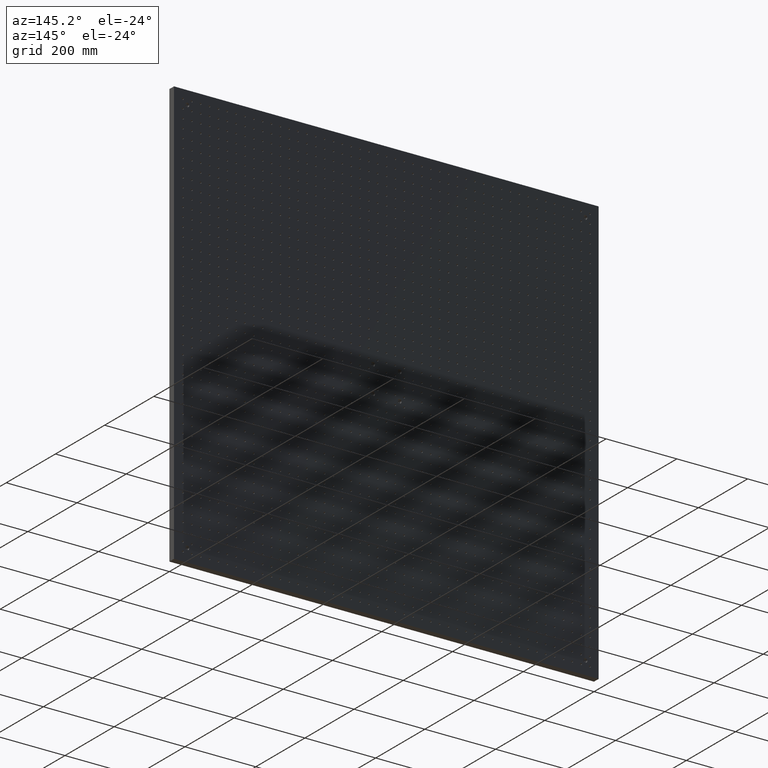
[diagram: clean part render]
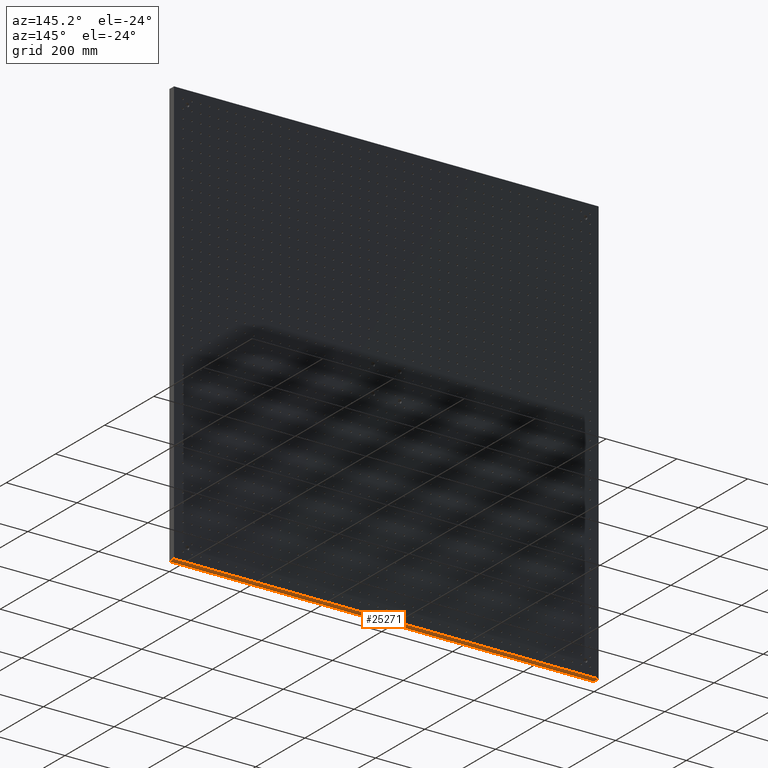
[diagram: same view with one face highlighted and labeled with its STEP entity id]
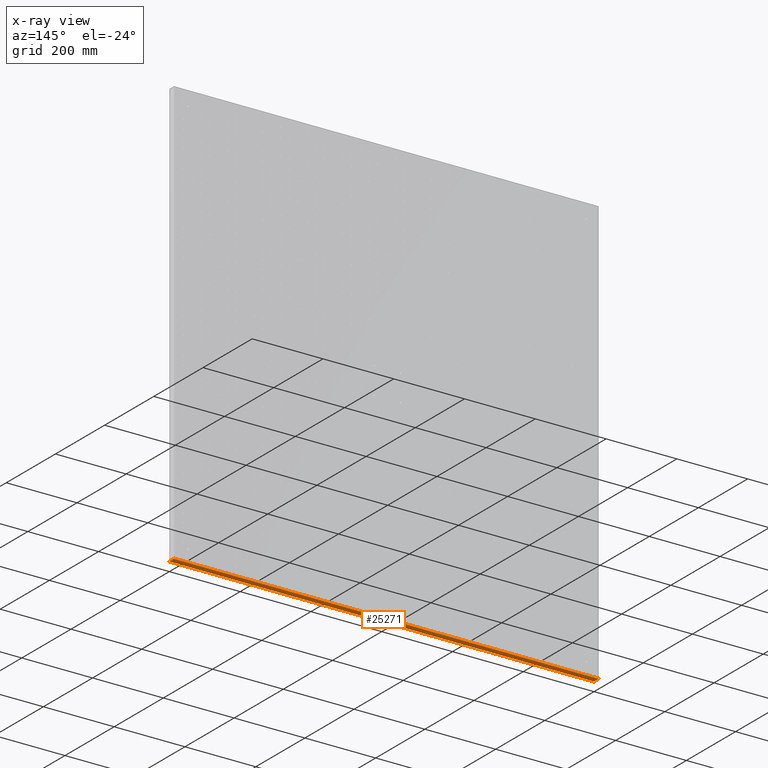
[diagram: x-ray of the same camera — body ghosted, the highlighted face saturated]
A machine part, auxiliary view. The second image highlights one B-rep face of the part: STEP entity #25271.
The next image is the same camera in x-ray: the body ghosted, the highlighted face saturated — about 0% of this face is hidden behind the body in this view.
In plain terms, the highlighted planar face has unit normal (0, 0, 1).
Its self-contained STEP definition (entity closure, byte-faithful):
#1311 = CARTESIAN_POINT ( 'NONE',  ( -600.0000000000000000, 19.00000000000000000, -599.9999999999998863 ) ) ;
#1854 = EDGE_CURVE ( 'NONE', #17085, #16093, #3328, .T. ) ;
#3328 = LINE ( 'NONE', #17775, #54981 ) ;
#6208 = VECTOR ( 'NONE', #46972, 1000.000000000000000 ) ;
#9893 = EDGE_CURVE ( 'NONE', #16093, #52888, #38920, .T. ) ;
#9972 = DIRECTION ( 'NONE',  ( 0.000000000000000000, 0.000000000000000000, 1.000000000000000000 ) ) ;
#14694 = AXIS2_PLACEMENT_3D ( 'NONE', #63270, #9972, #51751 ) ;
#16093 = VERTEX_POINT ( 'NONE', #50293 ) ;
#16900 = ORIENTED_EDGE ( 'NONE', *, *, #9893, .T. ) ;
#17085 = VERTEX_POINT ( 'NONE', #72023 ) ;
#17775 = CARTESIAN_POINT ( 'NONE',  ( 600.0000000000000000, 19.00000000000000000, -599.9999999999998863 ) ) ;
#23850 = EDGE_CURVE ( 'NONE', #52888, #39492, #43539, .T. ) ;
#23976 = ORIENTED_EDGE ( 'NONE', *, *, #23850, .T. ) ;
#25017 = CARTESIAN_POINT ( 'NONE',  ( -600.0000000000000000, 0.000000000000000000, -599.9999999999998863 ) ) ;
#25271 = ADVANCED_FACE ( 'NONE', ( #62517 ), #44865, .F. ) ;
#27219 = ORIENTED_EDGE ( 'NONE', *, *, #1854, .T. ) ;
#32449 = CARTESIAN_POINT ( 'NONE',  ( -600.0000000000000000, 19.00000000000000000, -599.9999999999998863 ) ) ;
#33258 = DIRECTION ( 'NONE',  ( -0.000000000000000000, -1.000000000000000000, 0.000000000000000000 ) ) ;
#38920 = LINE ( 'NONE', #56158, #44502 ) ;
#38939 = DIRECTION ( 'NONE',  ( 0.000000000000000000, 1.000000000000000000, 0.000000000000000000 ) ) ;
#39492 = VERTEX_POINT ( 'NONE', #1311 ) ;
#41607 = CARTESIAN_POINT ( 'NONE',  ( 0.000000000000000000, 19.00000000000000000, -599.9999999999998863 ) ) ;
#41991 = LINE ( 'NONE', #41607, #6208 ) ;
#43351 = EDGE_CURVE ( 'NONE', #17085, #39492, #41991, .T. ) ;
#43539 = LINE ( 'NONE', #32449, #43878 ) ;
#43878 = VECTOR ( 'NONE', #38939, 1000.000000000000000 ) ;
#44502 = VECTOR ( 'NONE', #62303, 1000.000000000000000 ) ;
#44865 = PLANE ( 'NONE',  #14694 ) ;
#45322 = ORIENTED_EDGE ( 'NONE', *, *, #43351, .F. ) ;
#46972 = DIRECTION ( 'NONE',  ( -1.000000000000000000, -0.000000000000000000, 0.000000000000000000 ) ) ;
#50293 = CARTESIAN_POINT ( 'NONE',  ( 600.0000000000000000, 0.000000000000000000, -599.9999999999998863 ) ) ;
#51751 = DIRECTION ( 'NONE',  ( 1.000000000000000000, 0.000000000000000000, -0.000000000000000000 ) ) ;
#52888 = VERTEX_POINT ( 'NONE', #25017 ) ;
#54981 = VECTOR ( 'NONE', #33258, 1000.000000000000000 ) ;
#56158 = CARTESIAN_POINT ( 'NONE',  ( -600.0000000000000000, 0.000000000000000000, -599.9999999999998863 ) ) ;
#58022 = EDGE_LOOP ( 'NONE', ( #23976, #45322, #27219, #16900 ) ) ;
#62303 = DIRECTION ( 'NONE',  ( -1.000000000000000000, -0.000000000000000000, 0.000000000000000000 ) ) ;
#62517 = FACE_OUTER_BOUND ( 'NONE', #58022, .T. ) ;
#63270 = CARTESIAN_POINT ( 'NONE',  ( -600.0000000000000000, 19.00000000000000000, -599.9999999999998863 ) ) ;
#72023 = CARTESIAN_POINT ( 'NONE',  ( 600.0000000000000000, 19.00000000000000000, -599.9999999999998863 ) ) ;